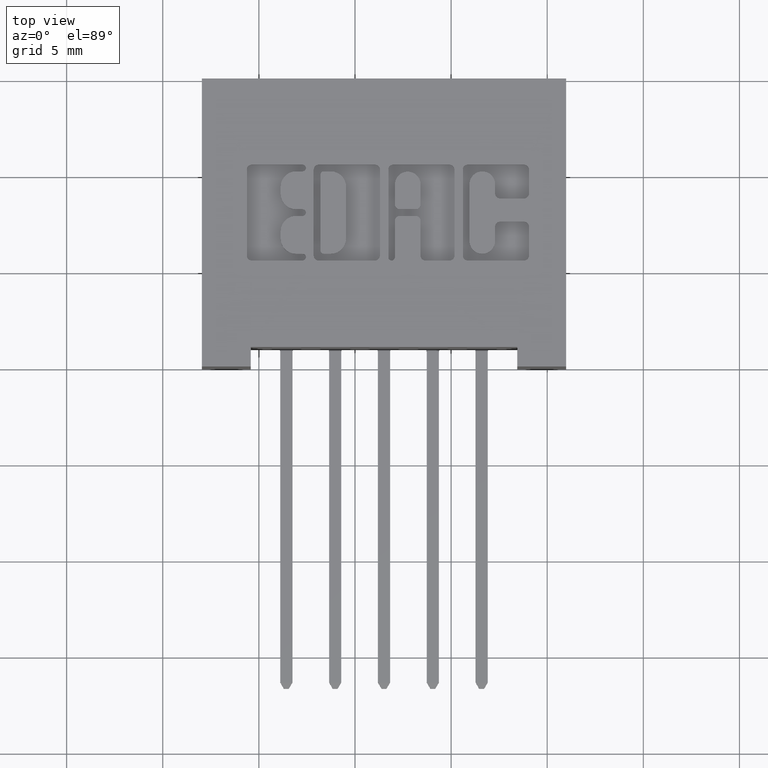
[diagram: clean part render]
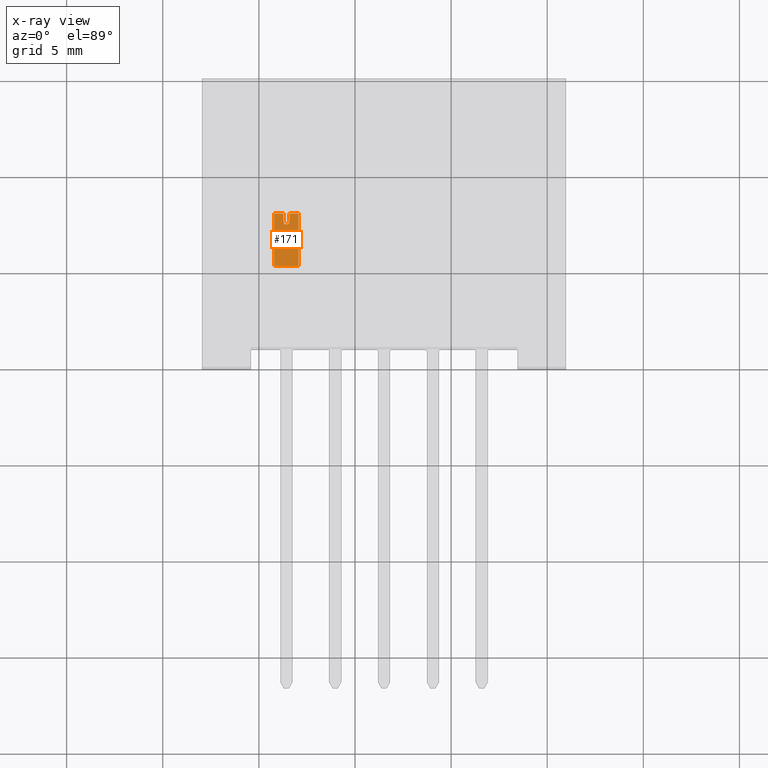
[diagram: x-ray — body ghosted, one internal face saturated and labeled with its STEP entity id]
A machine part, top view, then the same camera in x-ray: the body is ghosted and one INTERNAL B-rep face — a face not visible from any outside direction — is saturated and labeled: STEP entity #171.
In plain terms, the highlighted planar face has unit normal (0, 0, 1).
Its self-contained STEP definition (entity closure, byte-faithful):
#171 = ADVANCED_FACE ( 'NONE', ( #4215 ), #4464, .T. ) ;
#271 = VERTEX_POINT ( 'NONE', #5933 ) ;
#311 = VECTOR ( 'NONE', #5660, 39.37007874015748100 ) ;
#503 = LINE ( 'NONE', #5093, #311 ) ;
#535 = VECTOR ( 'NONE', #3137, 39.37007874015748100 ) ;
#627 = LINE ( 'NONE', #2664, #3568 ) ;
#723 = CARTESIAN_POINT ( 'NONE',  ( 0.4372132034355963900, 0.02549999999999997800, -0.02499999999999991100 ) ) ;
#873 = ORIENTED_EDGE ( 'NONE', *, *, #5598, .T. ) ;
#1014 = VERTEX_POINT ( 'NONE', #5350 ) ;
#1032 = CARTESIAN_POINT ( 'NONE',  ( 0.3300000000000000200, 0.02549999999999993900, 0.02499999999999991100 ) ) ;
#1051 = ORIENTED_EDGE ( 'NONE', *, *, #1595, .T. ) ;
#1094 = VERTEX_POINT ( 'NONE', #723 ) ;
#1133 = AXIS2_PLACEMENT_3D ( 'NONE', #4462, #4244, #5453 ) ;
#1325 = EDGE_CURVE ( 'NONE', #1764, #1980, #627, .T. ) ;
#1550 = CIRCLE ( 'NONE', #4362, 0.006000000000000086000 ) ;
#1595 = EDGE_CURVE ( 'NONE', #271, #1014, #3578, .T. ) ;
#1601 = DIRECTION ( 'NONE',  ( 1.000000000000000000, 3.583197887933719300E-016, 0.0000000000000000000 ) ) ;
#1646 = DIRECTION ( 'NONE',  ( 1.000000000000000000, 3.583197887933719300E-016, 0.0000000000000000000 ) ) ;
#1764 = VERTEX_POINT ( 'NONE', #6362 ) ;
#1980 = VERTEX_POINT ( 'NONE', #7333 ) ;
#2014 = LINE ( 'NONE', #6721, #4767 ) ;
#2027 = ORIENTED_EDGE ( 'NONE', *, *, #2884, .F. ) ;
#2140 = VECTOR ( 'NONE', #1646, 39.37007874015748100 ) ;
#2383 = CARTESIAN_POINT ( 'NONE',  ( 0.3300000000000000200, 0.02549999999999993900, -0.02499999999999991100 ) ) ;
#2595 = ORIENTED_EDGE ( 'NONE', *, *, #7362, .T. ) ;
#2664 = CARTESIAN_POINT ( 'NONE',  ( 0.3300000000000000200, 0.02549999999999993900, -0.02499999999999991100 ) ) ;
#2884 = EDGE_CURVE ( 'NONE', #1094, #4030, #7128, .T. ) ;
#2988 = EDGE_CURVE ( 'NONE', #7382, #271, #1550, .T. ) ;
#3137 = DIRECTION ( 'NONE',  ( 1.000000000000000000, 3.583197887933719300E-016, -1.280553747030123100E-016 ) ) ;
#3227 = CARTESIAN_POINT ( 'NONE',  ( 0.3462132034355963600, 0.02549999999999993900, -0.006000000000000118100 ) ) ;
#3367 = EDGE_CURVE ( 'NONE', #1980, #7382, #6702, .T. ) ;
#3403 = VERTEX_POINT ( 'NONE', #6051 ) ;
#3420 = VERTEX_POINT ( 'NONE', #1032 ) ;
#3545 = ORIENTED_EDGE ( 'NONE', *, *, #1325, .T. ) ;
#3568 = VECTOR ( 'NONE', #6029, 39.37007874015748100 ) ;
#3578 = CIRCLE ( 'NONE', #5225, 0.006000000000000086000 ) ;
#3699 = DIRECTION ( 'NONE',  ( 0.0000000000000000000, 0.0000000000000000000, 1.000000000000000000 ) ) ;
#3722 = DIRECTION ( 'NONE',  ( -1.000000000000000000, -7.114187483500583300E-016, 0.0000000000000000000 ) ) ;
#3793 = ORIENTED_EDGE ( 'NONE', *, *, #5131, .T. ) ;
#3803 = LINE ( 'NONE', #6606, #5158 ) ;
#4027 = CARTESIAN_POINT ( 'NONE',  ( 0.3300000000000000200, 0.02549999999999993900, -0.006000000000000116400 ) ) ;
#4030 = VERTEX_POINT ( 'NONE', #5924 ) ;
#4215 = FACE_OUTER_BOUND ( 'NONE', #5885, .T. ) ;
#4244 = DIRECTION ( 'NONE',  ( -3.583197887933719300E-016, 1.000000000000000000, 0.0000000000000000000 ) ) ;
#4362 = AXIS2_PLACEMENT_3D ( 'NONE', #5427, #7301, #7260 ) ;
#4447 = EDGE_CURVE ( 'NONE', #1764, #1094, #6958, .T. ) ;
#4462 = CARTESIAN_POINT ( 'NONE',  ( 0.3300000000000000200, 0.02549999999999993900, -0.02499999999999991100 ) ) ;
#4464 = PLANE ( 'NONE',  #1133 ) ;
#4767 = VECTOR ( 'NONE', #7283, 39.37007874015748100 ) ;
#4957 = ORIENTED_EDGE ( 'NONE', *, *, #2988, .T. ) ;
#5093 = CARTESIAN_POINT ( 'NONE',  ( 0.3300000000000000200, 0.02549999999999993900, -0.02499999999999991100 ) ) ;
#5131 = EDGE_CURVE ( 'NONE', #3420, #4030, #3803, .T. ) ;
#5158 = VECTOR ( 'NONE', #1601, 39.37007874015748100 ) ;
#5225 = AXIS2_PLACEMENT_3D ( 'NONE', #6944, #5503, #3722 ) ;
#5350 = CARTESIAN_POINT ( 'NONE',  ( 0.3462132034355963600, 0.02549999999999993900, 0.006000000000000118100 ) ) ;
#5427 = CARTESIAN_POINT ( 'NONE',  ( 0.3462132034355963600, 0.02549999999999993900, 0.0000000000000000000 ) ) ;
#5453 = DIRECTION ( 'NONE',  ( -1.000000000000000000, -3.583197887933719300E-016, 0.0000000000000000000 ) ) ;
#5503 = DIRECTION ( 'NONE',  ( 3.583197887933719300E-016, -1.000000000000000000, -0.0000000000000000000 ) ) ;
#5515 = CARTESIAN_POINT ( 'NONE',  ( 0.4372132034355963900, 0.02549999999999997800, -0.02499999999999991100 ) ) ;
#5598 = EDGE_CURVE ( 'NONE', #3403, #3420, #503, .T. ) ;
#5610 = VECTOR ( 'NONE', #3699, 39.37007874015748100 ) ;
#5660 = DIRECTION ( 'NONE',  ( 0.0000000000000000000, 0.0000000000000000000, 1.000000000000000000 ) ) ;
#5861 = ORIENTED_EDGE ( 'NONE', *, *, #4447, .F. ) ;
#5885 = EDGE_LOOP ( 'NONE', ( #4957, #1051, #2595, #873, #3793, #2027, #5861, #3545, #6786 ) ) ;
#5924 = CARTESIAN_POINT ( 'NONE',  ( 0.4372132034355963900, 0.02549999999999997800, 0.02499999999999991100 ) ) ;
#5933 = CARTESIAN_POINT ( 'NONE',  ( 0.3522132034355964800, 0.02549999999999994300, 0.0000000000000000000 ) ) ;
#6029 = DIRECTION ( 'NONE',  ( 0.0000000000000000000, 0.0000000000000000000, 1.000000000000000000 ) ) ;
#6051 = CARTESIAN_POINT ( 'NONE',  ( 0.3300000000000000200, 0.02549999999999993600, 0.006000000000000118100 ) ) ;
#6362 = CARTESIAN_POINT ( 'NONE',  ( 0.3300000000000000200, 0.02549999999999993900, -0.02499999999999991100 ) ) ;
#6606 = CARTESIAN_POINT ( 'NONE',  ( 0.3300000000000000200, 0.02549999999999993900, 0.02499999999999991100 ) ) ;
#6702 = LINE ( 'NONE', #4027, #535 ) ;
#6721 = CARTESIAN_POINT ( 'NONE',  ( 0.3300000000000000200, 0.02549999999999993900, 0.006000000000000120700 ) ) ;
#6786 = ORIENTED_EDGE ( 'NONE', *, *, #3367, .T. ) ;
#6944 = CARTESIAN_POINT ( 'NONE',  ( 0.3462132034355963600, 0.02549999999999993900, 0.0000000000000000000 ) ) ;
#6958 = LINE ( 'NONE', #2383, #2140 ) ;
#7128 = LINE ( 'NONE', #5515, #5610 ) ;
#7260 = DIRECTION ( 'NONE',  ( -1.000000000000000000, -7.114187483500583300E-016, 0.0000000000000000000 ) ) ;
#7283 = DIRECTION ( 'NONE',  ( -1.000000000000000000, -3.583197887933719300E-016, 0.0000000000000000000 ) ) ;
#7301 = DIRECTION ( 'NONE',  ( 3.583197887933719300E-016, -1.000000000000000000, -0.0000000000000000000 ) ) ;
#7333 = CARTESIAN_POINT ( 'NONE',  ( 0.3300000000000000200, 0.02549999999999993600, -0.006000000000000116400 ) ) ;
#7362 = EDGE_CURVE ( 'NONE', #1014, #3403, #2014, .T. ) ;
#7382 = VERTEX_POINT ( 'NONE', #3227 ) ;